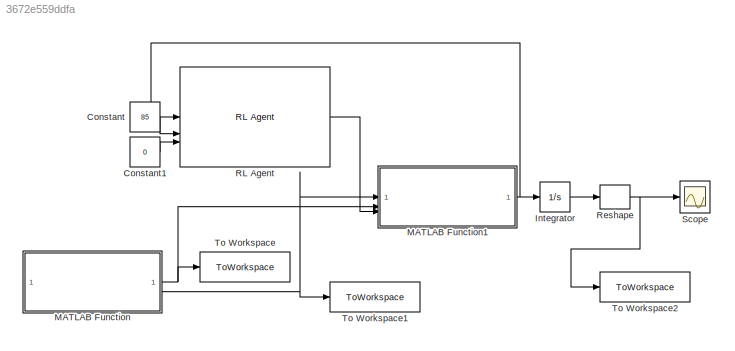
MODEL slx_3672e559ddfa
KIND model
CONFIG AbsTol = auto
CONFIG EnableMultiTasking = off
CONFIG FixedStep = 0.005
CONFIG MaxStep = auto
CONFIG MinStep = auto
CONFIG RelTol = 1e-3
CONFIG SampleTimeConstraint = Unconstrained
CONFIG SolverName = ode1
CONFIG StartTime = 0.0
CONFIG StopTime = 10.0
BLOCK [Constant] Constant
  Value = 85
BLOCK [Constant] Constant1
  Value = 0
BLOCK [Integrator] Integrator
  InitialCondition = [1, 1]
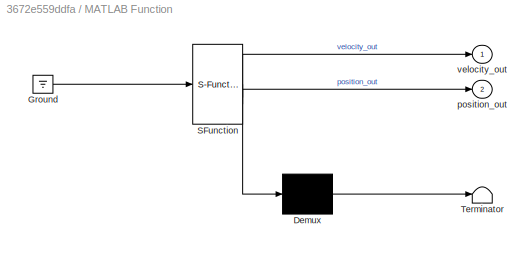
BLOCK [SubSystem] MATLAB Function
  ErrorFcn = Stateflow.Translate.translate
  LibrarySourceBlock = simulink/User-Defined\nFunctions/MATLAB Function
  PermitHierarchicalResolution = ExplicitOnly
  SFBlockType = MATLAB Function
  TreatAsAtomicUnit = on
BLOCK [Demux] MATLAB Function/ Demux 
  Outputs = 1
BLOCK [Ground] MATLAB Function/ Ground 
BLOCK [S-Function] MATLAB Function/ SFunction 
  EnableBusSupport = on
  FunctionName = sf_sfun
  PortCounts = [1 3]
  SFcnIsStateOwnerBlock = off
  SFunctionDeploymentMode = off
  Tag = Stateflow S-Function 2
BLOCK [Terminator] MATLAB Function/ Terminator 
BLOCK [Outport] MATLAB Function/position_out
  Port = 2
BLOCK [Outport] MATLAB Function/velocity_out
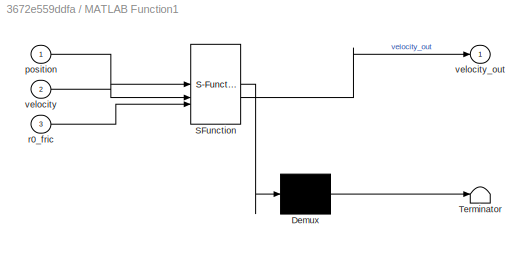
BLOCK [SubSystem] MATLAB Function1
  ErrorFcn = Stateflow.Translate.translate
  LibrarySourceBlock = simulink/User-Defined\nFunctions/MATLAB Function
  PermitHierarchicalResolution = ExplicitOnly
  SFBlockType = MATLAB Function
  TreatAsAtomicUnit = on
BLOCK [Demux] MATLAB Function1/ Demux 
  Outputs = 1
BLOCK [S-Function] MATLAB Function1/ SFunction 
  EnableBusSupport = on
  FunctionName = sf_sfun
  PortCounts = [3 2]
  SFcnIsStateOwnerBlock = off
  SFunctionDeploymentMode = off
  Tag = Stateflow S-Function 1
BLOCK [Terminator] MATLAB Function1/ Terminator 
BLOCK [Inport] MATLAB Function1/position
BLOCK [Inport] MATLAB Function1/r0_fric
  Port = 3
BLOCK [Inport] MATLAB Function1/velocity
  Port = 2
BLOCK [Outport] MATLAB Function1/velocity_out
BLOCK [Reference] RL Agent  REF=rllib/RL Agent
  SourceBlock = rllib/RL Agent
  SourceType = RL Agent
BLOCK [Reshape] Reshape
  OutputDimensionality = Column vector (2-D)
  OutputDimensions = [2,1]
BLOCK [Scope] Scope
  Floating = off
  NumInputPorts = 1
  ScopeSpecificationString = Simulink.scopes.TimeScopeBlockCfg('CurrentConfiguration', extmgr.ConfigurationSet(extmgr.Configuration('Core','General UI',true),extmgr.Configuration('Core','Source UI',true),extmgr.Configuration('Sources','WiredSimulink',true),extmgr.Configuration('Visuals','Time Domain',true,'SerializedDisplays',{struct('MinYLimReal','-61.19352','MaxYLimReal','38.23326','YLabelReal','','MinYLimMag','0.00000','Ma...<+1347ch>
BLOCK [ToWorkspace] To Workspace
  FixptAsFi = on
  MaxDataPoints = inf
  SampleTime = -1
  Save2DSignal = 2-D array (concatenate along first dimension)
  VariableName = v
BLOCK [ToWorkspace] To Workspace1
  FixptAsFi = on
  MaxDataPoints = inf
  SampleTime = -1
  Save2DSignal = 2-D array (concatenate along first dimension)
  VariableName = p
BLOCK [ToWorkspace] To Workspace2
  FixptAsFi = on
  MaxDataPoints = inf
  SampleTime = -1
  VariableName = simout
LINE Constant1:1 -> RL Agent:3
LINE Constant:1 -> RL Agent:2
LINE Integrator:1 -> Reshape:1
NET MATLAB Function1:1 -> Integrator:1, RL Agent:1
NET MATLAB Function:1 -> MATLAB Function1:2, To Workspace:1
NET MATLAB Function:2 -> MATLAB Function1:1, To Workspace1:1
LINE RL Agent:1 -> MATLAB Function1:3
NET Reshape:1 -> Scope:1, To Workspace2:1
note: NET lines group one-source signal fan-out (src -> all destinations, sorted); 1:1 wires keep LINE
CHART MATLAB Function1 states=1 transitions=1
  STATE_LABEL 'eML_blk_kernel()'
  STATE_LABEL 'SCRIPT:\nfunction velocity_out = fcn(position, velocity, r0_fric)\n\n%%%%%%%% main Vasarhelyi Guidance Law %%%%%%%%\n\n%% parameters %%\n% x_arena: arena limits\nx_arena = [-100, 100; ... % x wall\n    -100, 100]; % y_wall\n% spheres: obstacles\nspheres = [0, 50, -50; 0, 10, 20; 5, 10, 2]; % x y radius\n% agent_number: number of agents\nagent_number = 20;\n% Max radius of influence - Metric distance\nradius = 2...<+3608ch>'
CHART MATLAB Function states=1 transitions=1
  STATE_LABEL 'eML_blk_kernel()'
  STATE_LABEL 'SCRIPT:\nfunction [velocity_out, position_out] = fcn()\n\n%%%%%%%% main Vasarhelyi Guidance Law %%%%%%%%\n\n%% parameters %%\n% x_arena: arena limits\nx_arena = [-100, 100; ... % x wall\n    -100, 100]; % y_wall\n% spheres: obstacles\nspheres = [0, 50, -50; 0, 10, 20; 5, 10, 2]; % x y radius\n% agent_number: number of agents\nagent_number = 20;\n% Max radius of influence - Metric distance\nradius = 20;\n% time: ...<+3608ch>'
CHART  states=0 transitions=0
CHART  states=0 transitions=0
